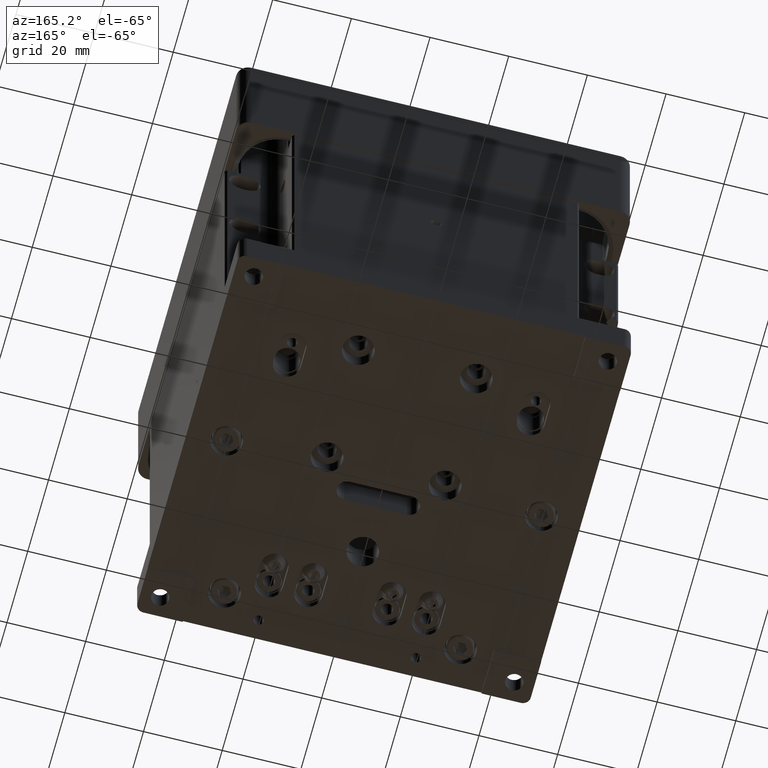
[diagram: clean part render]
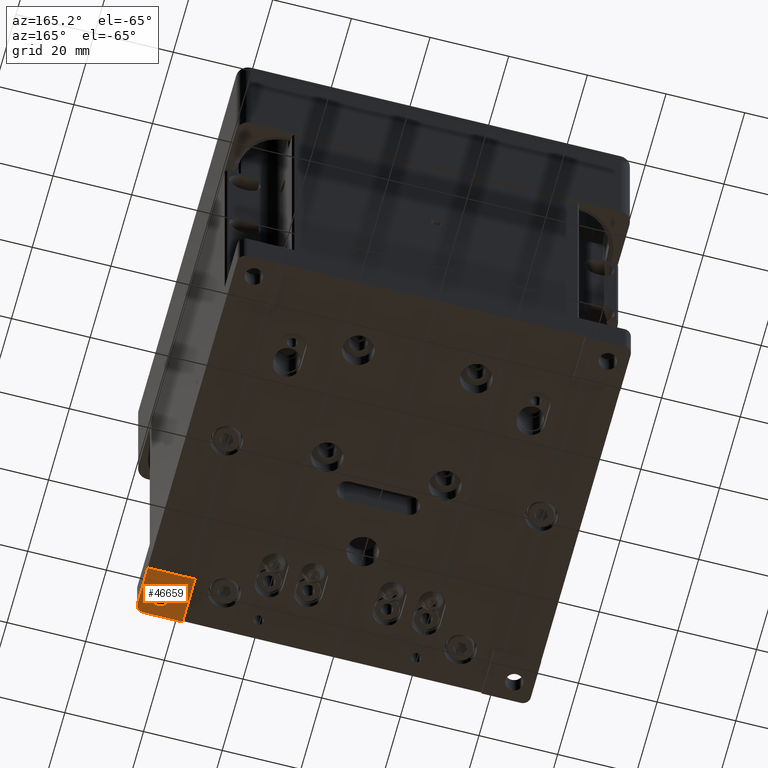
[diagram: same view with one face highlighted and labeled with its STEP entity id]
A machine part, auxiliary view. The second image highlights one B-rep face of the part: STEP entity #46659.
In plain terms, the highlighted planar face has unit normal (0, 0, -1).
Its self-contained STEP definition (entity closure, byte-faithful):
#1145 = DIRECTION ( 'NONE',  ( 1.000000000000000000, 0.000000000000000000, 0.000000000000000000 ) ) ;
#1463 = EDGE_CURVE ( 'NONE', #43010, #19421, #2961, .T. ) ;
#1636 = CARTESIAN_POINT ( 'NONE',  ( -49.99999999999998579, -49.99999999999998579, -10.00000000000000000 ) ) ;
#1842 = EDGE_CURVE ( 'NONE', #11013, #12325, #17561, .T. ) ;
#2627 = VECTOR ( 'NONE', #4882, 1000.000000000000000 ) ;
#2634 = DIRECTION ( 'NONE',  ( 0.000000000000000000, 1.000000000000000000, 0.000000000000000000 ) ) ;
#2961 = CIRCLE ( 'NONE', #5299, 2.000000000000001776 ) ;
#2988 = FACE_BOUND ( 'NONE', #25359, .T. ) ;
#3146 = EDGE_CURVE ( 'NONE', #43747, #46226, #7364, .T. ) ;
#3215 = DIRECTION ( 'NONE',  ( 0.000000000000000000, 0.000000000000000000, -1.000000000000000000 ) ) ;
#4882 = DIRECTION ( 'NONE',  ( -1.387778780781445922E-16, 1.000000000000000000, 0.000000000000000000 ) ) ;
#4924 = ORIENTED_EDGE ( 'NONE', *, *, #1463, .F. ) ;
#5299 = AXIS2_PLACEMENT_3D ( 'NONE', #17869, #24480, #33032 ) ;
#6568 = VECTOR ( 'NONE', #1145, 1000.000000000000000 ) ;
#7019 = DIRECTION ( 'NONE',  ( 1.000000000000000000, 0.000000000000000000, 0.000000000000000000 ) ) ;
#7364 = CIRCLE ( 'NONE', #31555, 2.250000000000001776 ) ;
#7676 = VERTEX_POINT ( 'NONE', #45207 ) ;
#8553 = ORIENTED_EDGE ( 'NONE', *, *, #3146, .T. ) ;
#9482 = CARTESIAN_POINT ( 'NONE',  ( 37.99999999999996447, -38.00000000000000711, -10.00000000000000000 ) ) ;
#10814 = PLANE ( 'NONE',  #11028 ) ;
#11013 = VERTEX_POINT ( 'NONE', #31036 ) ;
#11028 = AXIS2_PLACEMENT_3D ( 'NONE', #29629, #3215, #48272 ) ;
#11367 = CARTESIAN_POINT ( 'NONE',  ( 0.000000000000000000, -38.00000000000000711, -10.00000000000000000 ) ) ;
#12325 = VERTEX_POINT ( 'NONE', #9482 ) ;
#15190 = ORIENTED_EDGE ( 'NONE', *, *, #1842, .T. ) ;
#15272 = ORIENTED_EDGE ( 'NONE', *, *, #26499, .T. ) ;
#15685 = AXIS2_PLACEMENT_3D ( 'NONE', #18022, #25122, #7019 ) ;
#17389 = EDGE_CURVE ( 'NONE', #12325, #7676, #33165, .T. ) ;
#17561 = LINE ( 'NONE', #47443, #29068 ) ;
#17598 = ORIENTED_EDGE ( 'NONE', *, *, #17389, .T. ) ;
#17869 = CARTESIAN_POINT ( 'NONE',  ( 48.00000000000000000, -47.99999999999998579, -10.00000000000000000 ) ) ;
#18022 = CARTESIAN_POINT ( 'NONE',  ( 45.00000000000001421, -44.99999999999999289, -9.999999999999994671 ) ) ;
#18137 = FACE_OUTER_BOUND ( 'NONE', #26759, .T. ) ;
#19421 = VERTEX_POINT ( 'NONE', #25475 ) ;
#19790 = CARTESIAN_POINT ( 'NONE',  ( 49.99999999999998579, 50.00000000000000000, -10.00000000000000000 ) ) ;
#21184 = CIRCLE ( 'NONE', #15685, 2.250000000000001776 ) ;
#23251 = ORIENTED_EDGE ( 'NONE', *, *, #38711, .F. ) ;
#24124 = CARTESIAN_POINT ( 'NONE',  ( 47.25000000000001421, -44.99999999999999289, -9.999999999999994671 ) ) ;
#24480 = DIRECTION ( 'NONE',  ( 0.000000000000000000, 0.000000000000000000, 1.000000000000000000 ) ) ;
#25122 = DIRECTION ( 'NONE',  ( -0.000000000000000000, -0.000000000000000000, 1.000000000000000000 ) ) ;
#25274 = ORIENTED_EDGE ( 'NONE', *, *, #38314, .F. ) ;
#25359 = EDGE_LOOP ( 'NONE', ( #15272, #8553 ) ) ;
#25475 = CARTESIAN_POINT ( 'NONE',  ( 50.00000000000000000, -47.99999999999998579, -10.00000000000000000 ) ) ;
#26499 = EDGE_CURVE ( 'NONE', #46226, #43747, #21184, .T. ) ;
#26759 = EDGE_LOOP ( 'NONE', ( #17598, #25274, #4924, #23251, #15190 ) ) ;
#29050 = CARTESIAN_POINT ( 'NONE',  ( 45.00000000000001421, -44.99999999999999289, -9.999999999999994671 ) ) ;
#29068 = VECTOR ( 'NONE', #2634, 1000.000000000000000 ) ;
#29629 = CARTESIAN_POINT ( 'NONE',  ( 0.000000000000000000, 0.000000000000000000, -10.00000000000000000 ) ) ;
#29724 = CARTESIAN_POINT ( 'NONE',  ( 47.99999999999999289, -49.99999999999998579, -10.00000000000000000 ) ) ;
#31036 = CARTESIAN_POINT ( 'NONE',  ( 37.99999999999996447, -49.99999999999998579, -10.00000000000000000 ) ) ;
#31248 = VECTOR ( 'NONE', #48102, 1000.000000000000000 ) ;
#31555 = AXIS2_PLACEMENT_3D ( 'NONE', #29050, #32004, #47183 ) ;
#32004 = DIRECTION ( 'NONE',  ( -0.000000000000000000, -0.000000000000000000, 1.000000000000000000 ) ) ;
#33032 = DIRECTION ( 'NONE',  ( 1.000000000000000000, 0.000000000000000000, 0.000000000000000000 ) ) ;
#33165 = LINE ( 'NONE', #11367, #31248 ) ;
#38314 = EDGE_CURVE ( 'NONE', #19421, #7676, #45501, .T. ) ;
#38711 = EDGE_CURVE ( 'NONE', #11013, #43010, #38834, .T. ) ;
#38834 = LINE ( 'NONE', #1636, #6568 ) ;
#39675 = CARTESIAN_POINT ( 'NONE',  ( 42.75000000000000711, -44.99999999999999289, -9.999999999999994671 ) ) ;
#43010 = VERTEX_POINT ( 'NONE', #29724 ) ;
#43747 = VERTEX_POINT ( 'NONE', #39675 ) ;
#45207 = CARTESIAN_POINT ( 'NONE',  ( 50.00000000000000711, -38.00000000000000711, -10.00000000000000000 ) ) ;
#45501 = LINE ( 'NONE', #19790, #2627 ) ;
#46226 = VERTEX_POINT ( 'NONE', #24124 ) ;
#46659 = ADVANCED_FACE ( 'NONE', ( #18137, #2988 ), #10814, .T. ) ;
#47183 = DIRECTION ( 'NONE',  ( 1.000000000000000000, 0.000000000000000000, 0.000000000000000000 ) ) ;
#47443 = CARTESIAN_POINT ( 'NONE',  ( 37.99999999999996447, 0.000000000000000000, -10.00000000000000000 ) ) ;
#48102 = DIRECTION ( 'NONE',  ( 1.000000000000000000, -0.000000000000000000, 0.000000000000000000 ) ) ;
#48272 = DIRECTION ( 'NONE',  ( -1.000000000000000000, 0.000000000000000000, -0.000000000000000000 ) ) ;